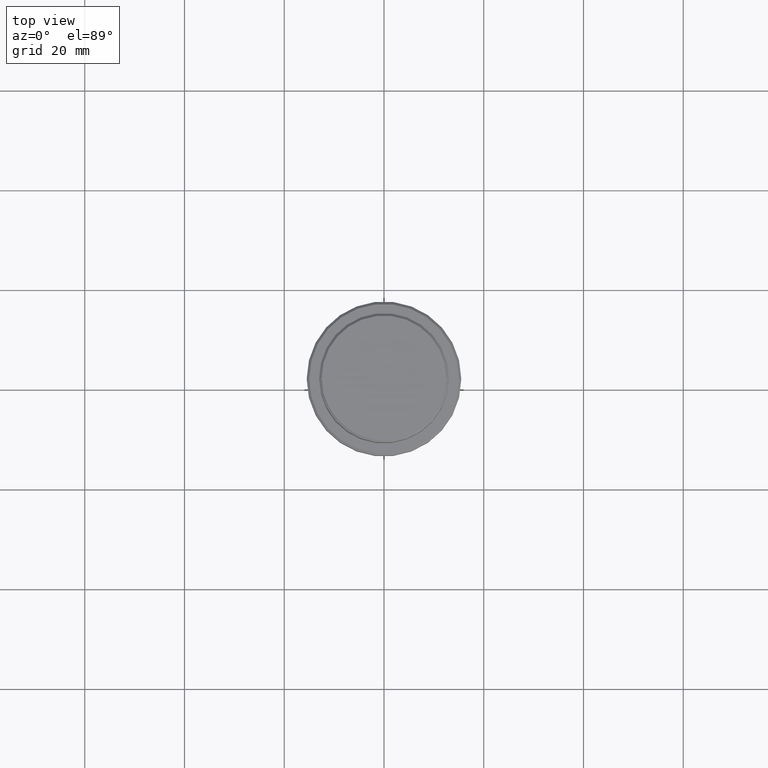
[diagram: clean part render]
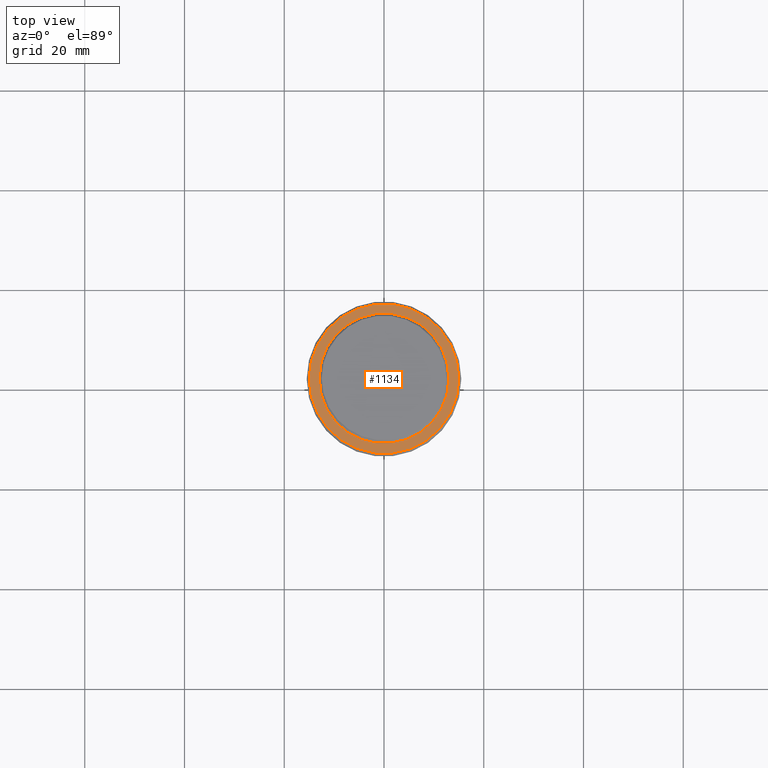
[diagram: same view with one face highlighted and labeled with its STEP entity id]
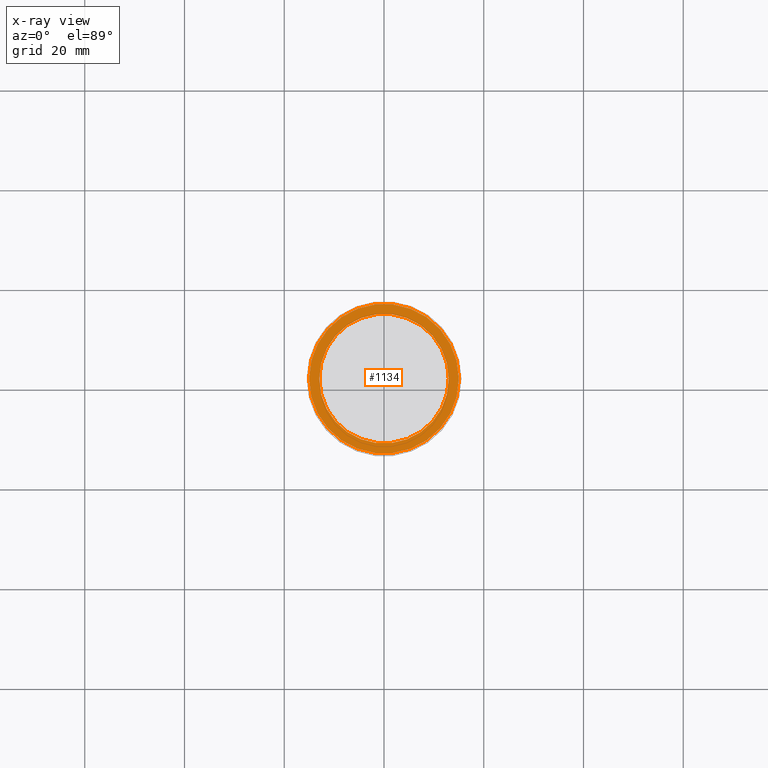
[diagram: x-ray of the same camera — body ghosted, the highlighted face saturated]
A machine part, top view. The second image highlights one B-rep face of the part: STEP entity #1134.
The next image is the same camera in x-ray: the body ghosted, the highlighted face saturated — about 0% of this face is hidden behind the body in this view.
In plain terms, the highlighted planar face has unit normal (0, -0, 1).
Its self-contained STEP definition (entity closure, byte-faithful):
#11 = CIRCLE ( 'NONE', #1046, 12.99999999999999467 ) ;
#45 = CARTESIAN_POINT ( 'NONE',  ( 12.99999999999999467, 0.000000000000000000, -9.000000000000000000 ) ) ;
#61 = VERTEX_POINT ( 'NONE', #1032 ) ;
#85 = FACE_BOUND ( 'NONE', #322, .T. ) ;
#91 = VERTEX_POINT ( 'NONE', #1271 ) ;
#168 = CIRCLE ( 'NONE', #774, 12.99999999999999467 ) ;
#241 = EDGE_CURVE ( 'NONE', #91, #511, #1356, .T. ) ;
#288 = DIRECTION ( 'NONE',  ( 0.000000000000000000, -0.000000000000000000, 1.000000000000000000 ) ) ;
#314 = DIRECTION ( 'NONE',  ( 0.000000000000000000, 0.000000000000000000, -1.000000000000000000 ) ) ;
#322 = EDGE_LOOP ( 'NONE', ( #683, #1004 ) ) ;
#335 = CARTESIAN_POINT ( 'NONE',  ( 0.000000000000000000, 0.000000000000000000, -9.000000000000000000 ) ) ;
#339 = EDGE_CURVE ( 'NONE', #1321, #61, #168, .T. ) ;
#359 = CARTESIAN_POINT ( 'NONE',  ( -15.00000000000002665, 0.000000000000000000, -9.000000000000000000 ) ) ;
#373 = DIRECTION ( 'NONE',  ( 1.000000000000000000, 0.000000000000000000, 0.000000000000000000 ) ) ;
#397 = FACE_OUTER_BOUND ( 'NONE', #1012, .T. ) ;
#488 = EDGE_CURVE ( 'NONE', #511, #91, #1041, .T. ) ;
#511 = VERTEX_POINT ( 'NONE', #359 ) ;
#517 = DIRECTION ( 'NONE',  ( 1.000000000000000000, 0.000000000000000000, 0.000000000000000000 ) ) ;
#558 = CARTESIAN_POINT ( 'NONE',  ( 0.000000000000000000, 0.000000000000000000, -9.000000000000000000 ) ) ;
#625 = PLANE ( 'NONE',  #1063 ) ;
#654 = DIRECTION ( 'NONE',  ( 1.000000000000000000, 0.000000000000000000, 0.000000000000000000 ) ) ;
#683 = ORIENTED_EDGE ( 'NONE', *, *, #339, .T. ) ;
#745 = AXIS2_PLACEMENT_3D ( 'NONE', #335, #1103, #654 ) ;
#774 = AXIS2_PLACEMENT_3D ( 'NONE', #558, #314, #984 ) ;
#843 = DIRECTION ( 'NONE',  ( 1.000000000000000000, 0.000000000000000000, 0.000000000000000000 ) ) ;
#854 = ORIENTED_EDGE ( 'NONE', *, *, #241, .T. ) ;
#984 = DIRECTION ( 'NONE',  ( 1.000000000000000000, 0.000000000000000000, 0.000000000000000000 ) ) ;
#1004 = ORIENTED_EDGE ( 'NONE', *, *, #1300, .T. ) ;
#1012 = EDGE_LOOP ( 'NONE', ( #1388, #854 ) ) ;
#1032 = CARTESIAN_POINT ( 'NONE',  ( -12.99999999999999467, 1.592040838891558504E-15, -9.000000000000000000 ) ) ;
#1036 = CARTESIAN_POINT ( 'NONE',  ( 0.000000000000000000, 0.000000000000000000, -9.000000000000000000 ) ) ;
#1041 = CIRCLE ( 'NONE', #1380, 15.00000000000002665 ) ;
#1046 = AXIS2_PLACEMENT_3D ( 'NONE', #1358, #1373, #517 ) ;
#1063 = AXIS2_PLACEMENT_3D ( 'NONE', #1267, #288, #843 ) ;
#1103 = DIRECTION ( 'NONE',  ( -0.000000000000000000, -0.000000000000000000, 1.000000000000000000 ) ) ;
#1134 = ADVANCED_FACE ( 'NONE', ( #397, #85 ), #625, .T. ) ;
#1267 = CARTESIAN_POINT ( 'NONE',  ( 0.000000000000000000, 12.49999999999999289, -9.000000000000000000 ) ) ;
#1271 = CARTESIAN_POINT ( 'NONE',  ( 15.00000000000002665, 1.867586368699715348E-15, -9.000000000000000000 ) ) ;
#1300 = EDGE_CURVE ( 'NONE', #61, #1321, #11, .T. ) ;
#1321 = VERTEX_POINT ( 'NONE', #45 ) ;
#1352 = DIRECTION ( 'NONE',  ( -0.000000000000000000, -0.000000000000000000, 1.000000000000000000 ) ) ;
#1356 = CIRCLE ( 'NONE', #745, 15.00000000000002665 ) ;
#1358 = CARTESIAN_POINT ( 'NONE',  ( 0.000000000000000000, 0.000000000000000000, -9.000000000000000000 ) ) ;
#1373 = DIRECTION ( 'NONE',  ( 0.000000000000000000, 0.000000000000000000, -1.000000000000000000 ) ) ;
#1380 = AXIS2_PLACEMENT_3D ( 'NONE', #1036, #1352, #373 ) ;
#1388 = ORIENTED_EDGE ( 'NONE', *, *, #488, .T. ) ;